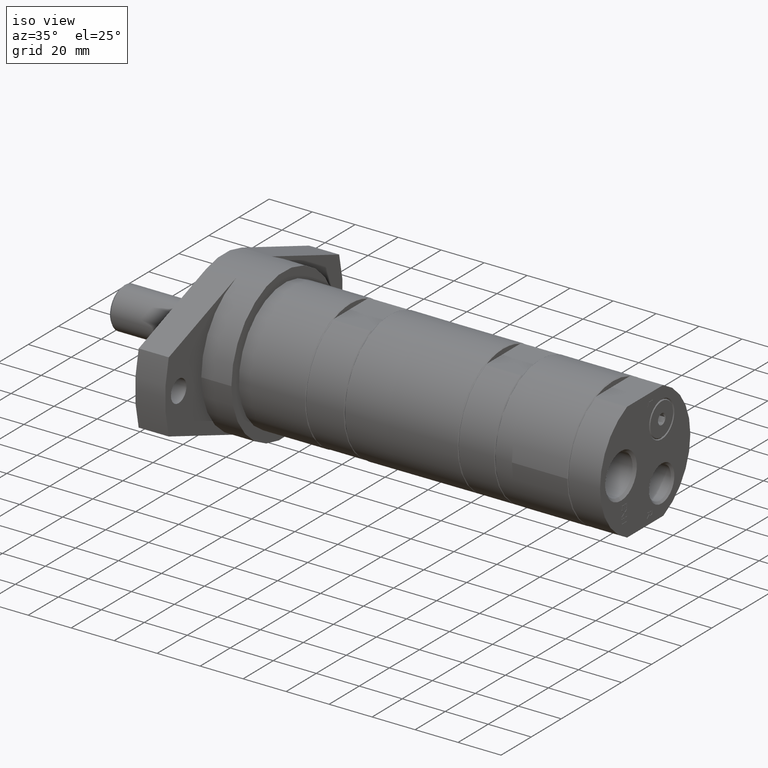
[diagram: clean part render]
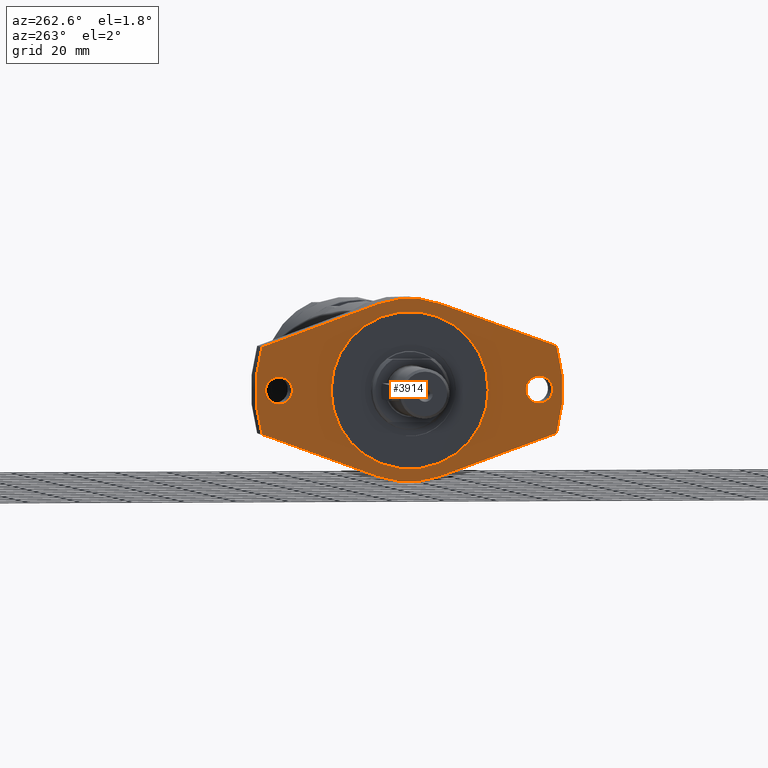
[diagram: tour spotlight — one face highlighted and labeled with its STEP entity id]
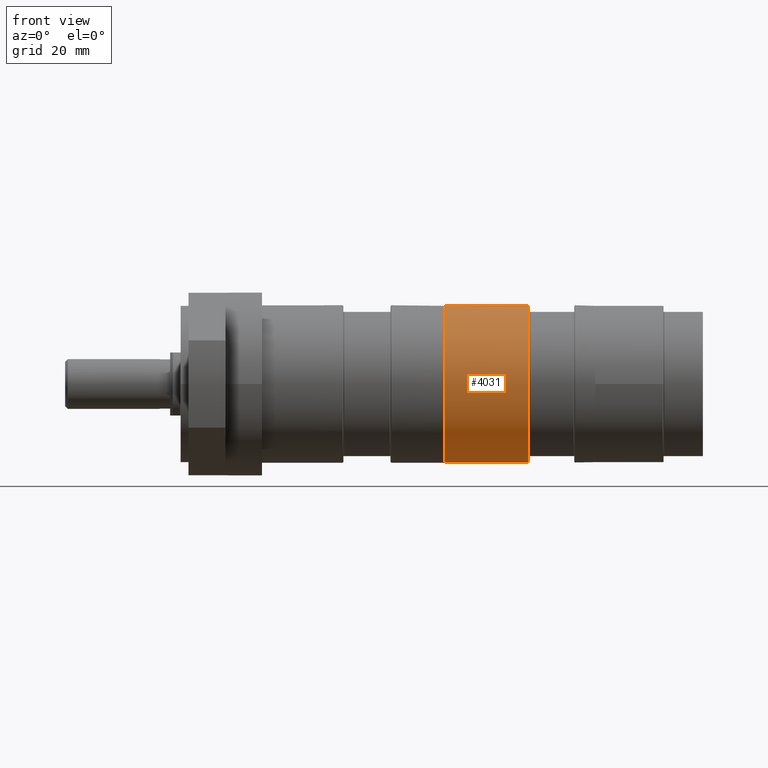
[diagram: tour spotlight — one face highlighted and labeled with its STEP entity id]
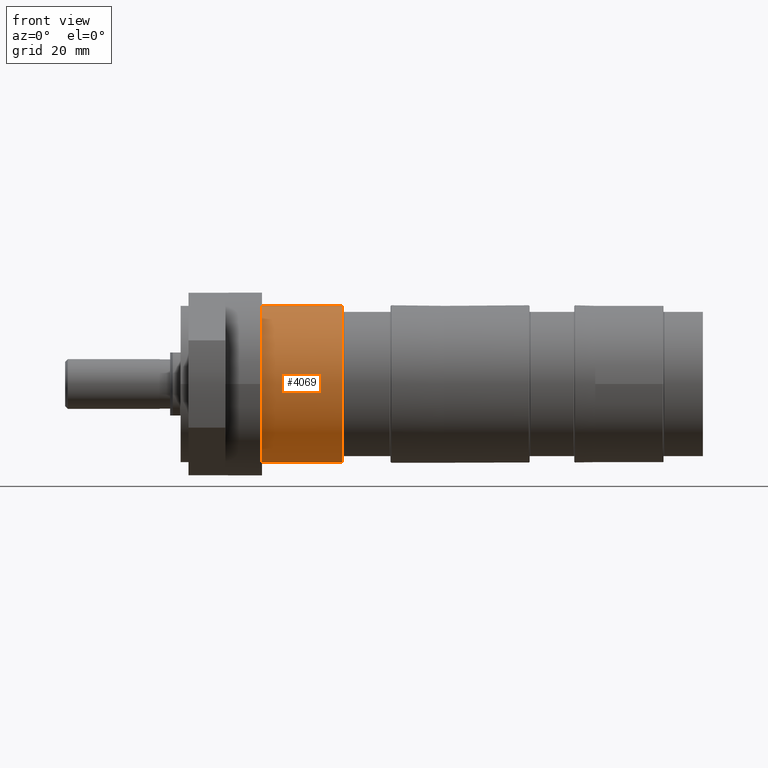
[diagram: tour spotlight — one face highlighted and labeled with its STEP entity id]
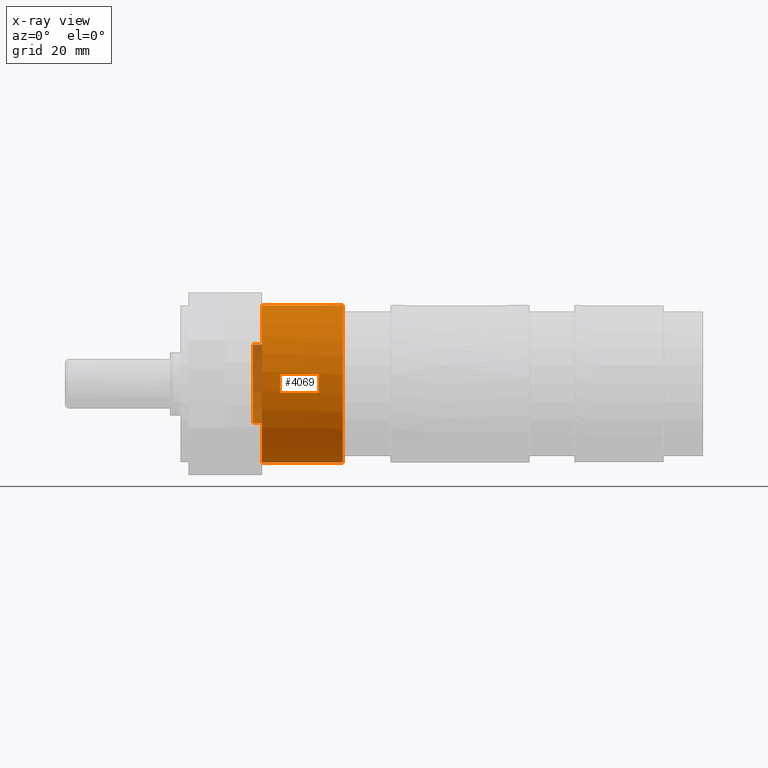
[diagram: x-ray of the same camera — body ghosted, this tour face saturated]
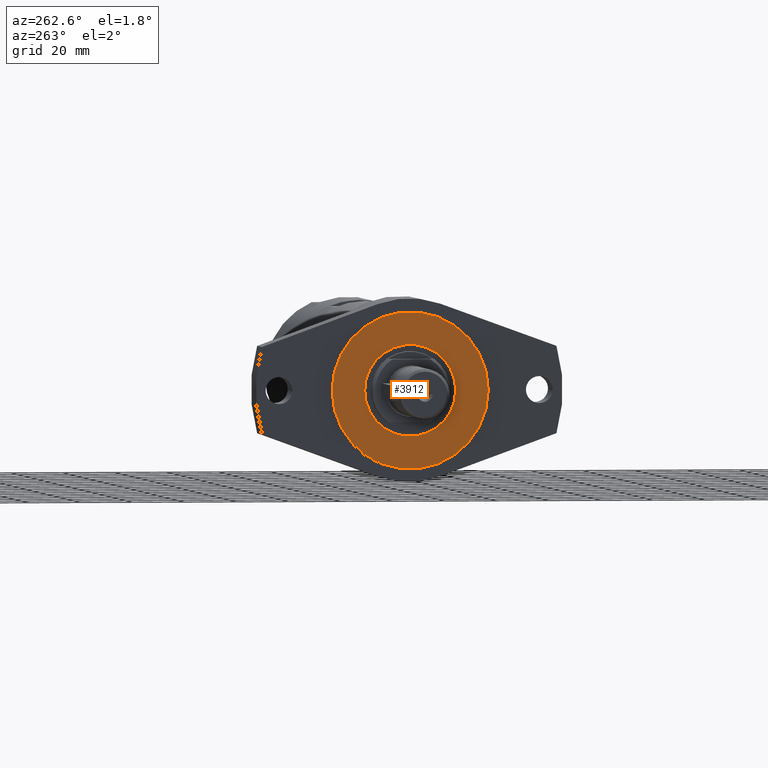
[diagram: tour spotlight — one face highlighted and labeled with its STEP entity id]
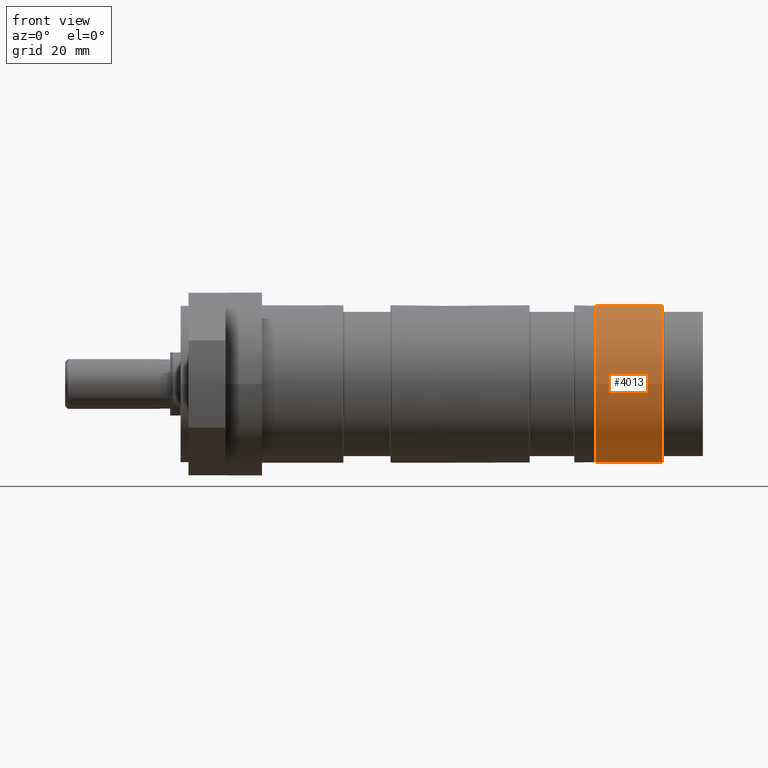
[diagram: tour spotlight — one face highlighted and labeled with its STEP entity id]
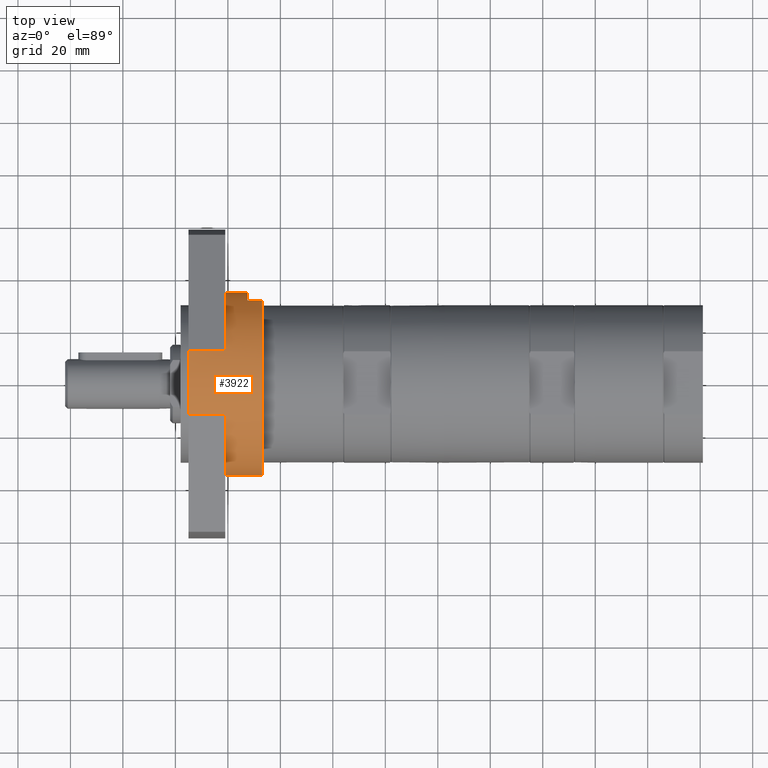
[diagram: tour spotlight — one face highlighted and labeled with its STEP entity id]
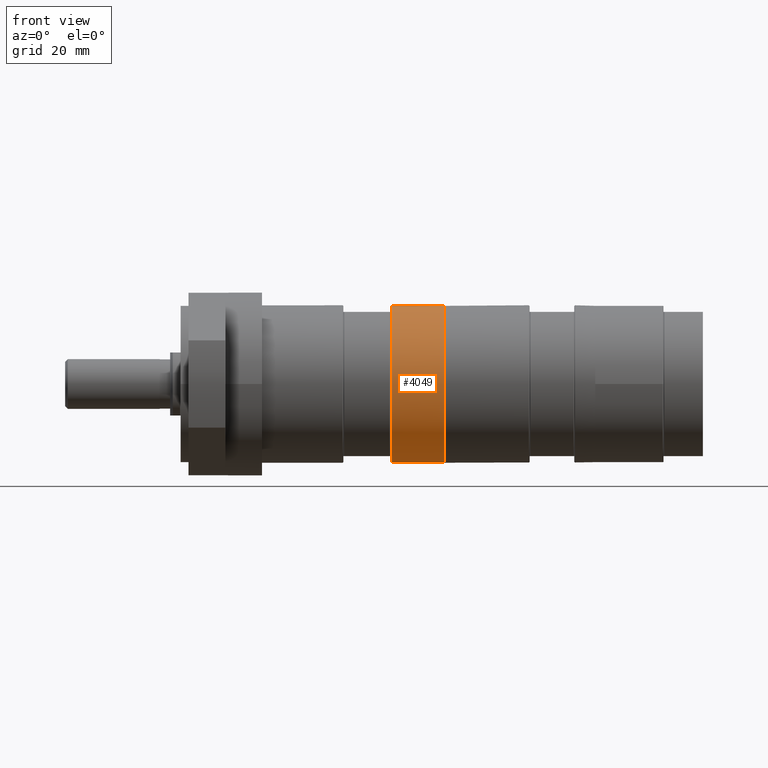
[diagram: tour spotlight — one face highlighted and labeled with its STEP entity id]
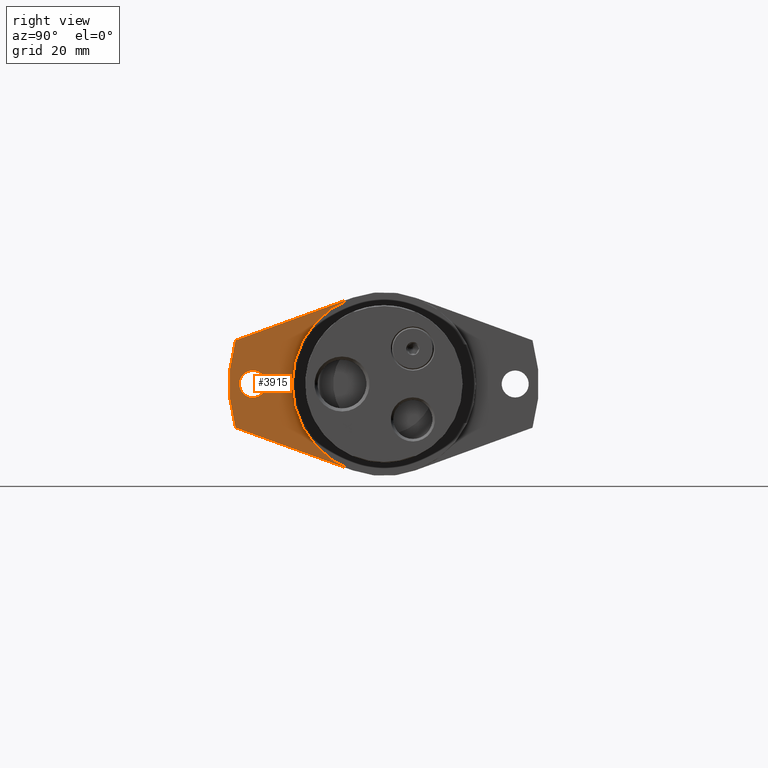
[diagram: tour spotlight — one face highlighted and labeled with its STEP entity id]
A machine part: a face-by-face anatomy tour. The part has 218 B-rep faces; the first image is the clean iso view, then the 8 largest visible faces are spotlighted one at a time (largest first), each with its STEP entity span.

Face 1 — auxiliary view, entity #3914. In plain terms, the highlighted planar face has unit normal (-1, -0, 0).
Definition (entity closure, byte-faithful):
#95=FACE_BOUND('',#1259,.T.);
#96=FACE_BOUND('',#1260,.T.);
#97=FACE_BOUND('',#1261,.T.);
#370=LINE('',#5796,#679);
#371=LINE('',#5799,#680);
#372=LINE('',#5801,#681);
#373=LINE('',#5804,#682);
#679=VECTOR('',#4639,10.);
#680=VECTOR('',#4642,10.);
#681=VECTOR('',#4643,10.);
#682=VECTOR('',#4646,10.);
#1038=FACE_OUTER_BOUND('',#1258,.T.);
#1258=EDGE_LOOP('',(#2691,#2692,#2693,#2694,#2695,#2696,#2697,#2698));
#1259=EDGE_LOOP('',(#2699));
#1260=EDGE_LOOP('',(#2700));
#1261=EDGE_LOOP('',(#2701,#2702));
#1503=CIRCLE('',#4168,59.);
#1504=CIRCLE('',#4170,30.);
#1505=CIRCLE('',#4171,30.);
#1509=CIRCLE('',#4177,59.);
#1510=CIRCLE('',#4179,35.);
#1511=CIRCLE('',#4180,35.);
#1512=CIRCLE('',#4181,5.15);
#1513=CIRCLE('',#4182,5.15);
#1705=VERTEX_POINT('',#5769);
#1706=VERTEX_POINT('',#5771);
#1707=VERTEX_POINT('',#5775);
#1708=VERTEX_POINT('',#5776);
#1711=VERTEX_POINT('',#5786);
#1714=VERTEX_POINT('',#5791);
#1715=VERTEX_POINT('',#5795);
#1716=VERTEX_POINT('',#5797);
#1717=VERTEX_POINT('',#5800);
#1718=VERTEX_POINT('',#5802);
#1719=VERTEX_POINT('',#5805);
#1720=VERTEX_POINT('',#5807);
#2090=EDGE_CURVE('',#1705,#1706,#1503,.T.);
#2092=EDGE_CURVE('',#1707,#1708,#1504,.T.);
#2093=EDGE_CURVE('',#1708,#1707,#1505,.T.);
#2100=EDGE_CURVE('',#1714,#1711,#1509,.T.);
#2101=EDGE_CURVE('',#1705,#1715,#370,.T.);
#2102=EDGE_CURVE('',#1715,#1716,#1510,.T.);
#2103=EDGE_CURVE('',#1716,#1711,#371,.T.);
#2104=EDGE_CURVE('',#1714,#1717,#372,.T.);
#2105=EDGE_CURVE('',#1717,#1718,#1511,.T.);
#2106=EDGE_CURVE('',#1718,#1706,#373,.T.);
#2107=EDGE_CURVE('',#1719,#1719,#1512,.T.);
#2108=EDGE_CURVE('',#1720,#1720,#1513,.T.);
#2691=ORIENTED_EDGE('',*,*,#2101,.T.);
#2692=ORIENTED_EDGE('',*,*,#2102,.T.);
#2693=ORIENTED_EDGE('',*,*,#2103,.T.);
#2694=ORIENTED_EDGE('',*,*,#2100,.F.);
#2695=ORIENTED_EDGE('',*,*,#2104,.T.);
#2696=ORIENTED_EDGE('',*,*,#2105,.T.);
#2697=ORIENTED_EDGE('',*,*,#2106,.T.);
#2698=ORIENTED_EDGE('',*,*,#2090,.F.);
#2699=ORIENTED_EDGE('',*,*,#2107,.T.);
#2700=ORIENTED_EDGE('',*,*,#2108,.T.);
#2701=ORIENTED_EDGE('',*,*,#2092,.T.);
#2702=ORIENTED_EDGE('',*,*,#2093,.T.);
#3777=PLANE('',#4178);
#3914=ADVANCED_FACE('',(#1038,#95,#96,#97),#3777,.T.);
#4168=AXIS2_PLACEMENT_3D('',#5772,#4613,#4614);
#4170=AXIS2_PLACEMENT_3D('',#5777,#4618,#4619);
#4171=AXIS2_PLACEMENT_3D('',#5778,#4620,#4621);
#4177=AXIS2_PLACEMENT_3D('',#5793,#4635,#4636);
#4178=AXIS2_PLACEMENT_3D('',#5794,#4637,#4638);
#4179=AXIS2_PLACEMENT_3D('',#5798,#4640,#4641);
#4180=AXIS2_PLACEMENT_3D('',#5803,#4644,#4645);
#4181=AXIS2_PLACEMENT_3D('',#5806,#4647,#4648);
#4182=AXIS2_PLACEMENT_3D('',#5808,#4649,#4650);
#4613=DIRECTION('center_axis',(1.,1.6466799969687E-15,-1.20178028529764E-30));
#4614=DIRECTION('ref_axis',(-1.6466799969687E-15,1.,3.94430452610507E-31));
#4618=DIRECTION('center_axis',(1.,1.6466799969687E-15,-1.20178028529764E-30));
#4619=DIRECTION('ref_axis',(-1.6466799969687E-15,1.,3.94430452610507E-31));
#4620=DIRECTION('center_axis',(1.,1.6466799969687E-15,-1.20178028529764E-30));
#4621=DIRECTION('ref_axis',(-1.6466799969687E-15,1.,3.94430452610507E-31));
#4635=DIRECTION('center_axis',(1.,1.6466799969687E-15,-1.20178028529764E-30));
#4636=DIRECTION('ref_axis',(-1.6466799969687E-15,1.,3.94430452610507E-31));
#4637=DIRECTION('center_axis',(-1.,-1.6466799969687E-15,1.20178028529764E-30));
#4638=DIRECTION('ref_axis',(1.20178028529764E-30,-3.94430452610505E-31,
1.));
#4639=DIRECTION('',(1.54737304194725E-15,-0.939692620785909,-0.342020143325668));
#4640=DIRECTION('center_axis',(-1.,-1.6466799969687E-15,1.20178028529764E-30));
#4641=DIRECTION('ref_axis',(5.63197728574748E-16,-0.342020143325668,0.939692620785909));
#4642=DIRECTION('',(1.54737304194725E-15,-0.939692620785908,0.342020143325669));
#4643=DIRECTION('',(-1.54737304194725E-15,0.939692620785908,0.342020143325669));
#4644=DIRECTION('center_axis',(-1.,-1.6466799969687E-15,1.20178028529764E-30));
#4645=DIRECTION('ref_axis',(-5.63197728574749E-16,0.342020143325669,-0.939692620785908));
#4646=DIRECTION('',(-1.54737304194725E-15,0.939692620785909,-0.342020143325669));
#4647=DIRECTION('center_axis',(1.,1.6466799969687E-15,-1.20178028529764E-30));
#4648=DIRECTION('ref_axis',(-1.03502222544593E-30,-1.01269257025463E-16,
-1.));
#4649=DIRECTION('center_axis',(1.,1.6466799969687E-15,-1.20178028529764E-30));
#4650=DIRECTION('ref_axis',(-1.03502222544593E-30,-1.01269257025463E-16,
-1.));
#5769=CARTESIAN_POINT('',(-155.,56.6036315599067,-16.6441849974799));
#5771=CARTESIAN_POINT('',(-155.,56.6036315599067,16.6441849974799));
#5772=CARTESIAN_POINT('Origin',(-155.,4.94003999090623E-15,-3.60534085589307E-30));
#5775=CARTESIAN_POINT('',(-155.,30.,8.22757272242215E-30));
#5776=CARTESIAN_POINT('',(-155.,-30.,-3.67394039744207E-15));
#5777=CARTESIAN_POINT('Origin',(-155.,4.94003999090623E-15,-3.60534085589307E-30));
#5778=CARTESIAN_POINT('Origin',(-155.,4.94003999090623E-15,-3.60534085589307E-30));
#5786=CARTESIAN_POINT('',(-154.999999999999,-56.6036315599067,-16.6441849974799));
#5791=CARTESIAN_POINT('',(-154.999999999999,-56.6036315599067,16.6441849974799));
#5793=CARTESIAN_POINT('Origin',(-155.,4.94003999090623E-15,-3.60534085589307E-30));
#5794=CARTESIAN_POINT('Origin',(-155.,44.5,1.39468142852745E-29));
#5795=CARTESIAN_POINT('',(-155.,11.9707050163984,-32.8892417275068));
#5796=CARTESIAN_POINT('',(-155.,76.7991739407519,-9.29360870599066));
#5797=CARTESIAN_POINT('',(-155.,-11.9707050163984,-32.8892417275068));
#5798=CARTESIAN_POINT('Origin',(-155.,4.94003999090623E-15,-3.60534085589307E-30));
#5799=CARTESIAN_POINT('',(-155.,7.67653941330023,-40.0402538852695));
#5800=CARTESIAN_POINT('',(-155.,-11.9707050163984,32.8892417275068));
#5801=CARTESIAN_POINT('',(-155.,-37.5046850813546,23.5956330215162));
#5802=CARTESIAN_POINT('',(-155.,11.9707050163984,32.8892417275068));
#5803=CARTESIAN_POINT('Origin',(-155.,4.94003999090623E-15,-3.60534085589307E-30));
#5804=CARTESIAN_POINT('',(-155.,31.617949446097,25.7382295697441));
#5805=CARTESIAN_POINT('',(-154.999999999999,-50.,5.15000000000001));
#5806=CARTESIAN_POINT('Origin',(-154.999999999999,-50.,5.06346285127313E-15));
#5807=CARTESIAN_POINT('',(-155.,50.,5.15));
#5808=CARTESIAN_POINT('Origin',(-155.,50.,-5.06346285127313E-15));

Face 2 — front view, entity #4031. In plain terms, the highlighted cylindrical surface (bore or boss wall) has radius 30 mm, axis along (1, 0, 0).
Definition (entity closure, byte-faithful):
#592=LINE('',#6582,#901);
#901=VECTOR('',#5227,30.);
#998=CYLINDRICAL_SURFACE('',#4361,30.);
#1155=FACE_OUTER_BOUND('',#1390,.T.);
#1390=EDGE_LOOP('',(#3318,#3319,#3320,#3321,#3322,#3323,#3324));
#1579=CIRCLE('',#4355,30.);
#1580=CIRCLE('',#4356,30.);
#1583=CIRCLE('',#4362,30.);
#1584=CIRCLE('',#4363,30.);
#1585=CIRCLE('',#4364,30.);
#1923=VERTEX_POINT('',#6567);
#1924=VERTEX_POINT('',#6568);
#1927=VERTEX_POINT('',#6581);
#1928=VERTEX_POINT('',#6583);
#1929=VERTEX_POINT('',#6585);
#2415=EDGE_CURVE('',#1923,#1924,#1579,.T.);
#2416=EDGE_CURVE('',#1924,#1923,#1580,.T.);
#2422=EDGE_CURVE('',#1923,#1927,#592,.T.);
#2423=EDGE_CURVE('',#1927,#1928,#1583,.T.);
#2424=EDGE_CURVE('',#1928,#1929,#1584,.T.);
#2425=EDGE_CURVE('',#1929,#1927,#1585,.T.);
#3318=ORIENTED_EDGE('',*,*,#2415,.T.);
#3319=ORIENTED_EDGE('',*,*,#2416,.T.);
#3320=ORIENTED_EDGE('',*,*,#2422,.T.);
#3321=ORIENTED_EDGE('',*,*,#2423,.T.);
#3322=ORIENTED_EDGE('',*,*,#2424,.T.);
#3323=ORIENTED_EDGE('',*,*,#2425,.T.);
#3324=ORIENTED_EDGE('',*,*,#2422,.F.);
#4031=ADVANCED_FACE('',(#1155),#998,.T.);
#4355=AXIS2_PLACEMENT_3D('',#6569,#5210,#5211);
#4356=AXIS2_PLACEMENT_3D('',#6570,#5212,#5213);
#4361=AXIS2_PLACEMENT_3D('',#6580,#5225,#5226);
#4362=AXIS2_PLACEMENT_3D('',#6584,#5228,#5229);
#4363=AXIS2_PLACEMENT_3D('',#6586,#5230,#5231);
#4364=AXIS2_PLACEMENT_3D('',#6587,#5232,#5233);
#5210=DIRECTION('center_axis',(-1.,-6.15522897323642E-16,-6.77724834287753E-32));
#5211=DIRECTION('ref_axis',(5.04500594861127E-16,-1.,3.41912582050329E-47));
#5212=DIRECTION('center_axis',(-1.,-6.15522897323642E-16,-6.77724834287753E-32));
#5213=DIRECTION('ref_axis',(5.04500594861127E-16,-1.,3.41912582050329E-47));
#5225=DIRECTION('center_axis',(1.,6.15522897323642E-16,6.77724834287753E-32));
#5226=DIRECTION('ref_axis',(5.04500594861127E-16,-1.,3.41912582050329E-47));
#5227=DIRECTION('',(-1.,-6.15522897323642E-16,-6.77724834287753E-32));
#5228=DIRECTION('center_axis',(1.,6.15522897323642E-16,6.77724834287753E-32));
#5229=DIRECTION('ref_axis',(5.04500594861127E-16,-1.,3.41912582050329E-47));
#5230=DIRECTION('center_axis',(1.,6.15522897323642E-16,6.77724834287753E-32));
#5231=DIRECTION('ref_axis',(5.04500594861127E-16,-1.,3.41912582050329E-47));
#5232=DIRECTION('center_axis',(1.,6.15522897323642E-16,6.77724834287753E-32));
#5233=DIRECTION('ref_axis',(5.04500594861127E-16,-1.,3.41912582050329E-47));
#6567=CARTESIAN_POINT('',(-25.3,30.,-3.67394039744206E-15));
#6568=CARTESIAN_POINT('',(-25.3,2.5070978907572E-14,30.));
#6569=CARTESIAN_POINT('Origin',(-25.3,2.87449193050141E-14,3.1649749761238E-30));
#6570=CARTESIAN_POINT('Origin',(-25.3,2.87449193050141E-14,3.1649749761238E-30));
#6580=CARTESIAN_POINT('Origin',(-28.75,2.66213653092475E-14,2.93115990829453E-30));
#6581=CARTESIAN_POINT('',(-57.5,30.,3.67394039744206E-15));
#6582=CARTESIAN_POINT('',(-28.75,30.,3.67394039744206E-15));
#6583=CARTESIAN_POINT('',(-57.5,-30.,9.82701009717243E-31));
#6584=CARTESIAN_POINT('Origin',(-57.5,8.92508201119281E-15,9.82701009717241E-31));
#6585=CARTESIAN_POINT('',(-57.5,1.04007659795775E-13,-30.));
#6586=CARTESIAN_POINT('Origin',(-57.5,8.92508201119281E-15,9.82701009717241E-31));
#6587=CARTESIAN_POINT('Origin',(-57.5,8.92508201119281E-15,9.82701009717241E-31));

Face 3 — front view, entity #4069. An x-ray twin of the same camera follows (body ghosted, this face saturated) — the face is partly hidden behind the body. In plain terms, the highlighted cylindrical surface (bore or boss wall) has radius 30 mm, axis along (1, 0, -0).
Definition (entity closure, byte-faithful):
#389=LINE('',#5863,#698);
#392=LINE('',#5868,#701);
#628=LINE('',#6857,#937);
#698=VECTOR('',#4710,10.);
#701=VECTOR('',#4715,10.);
#937=VECTOR('',#5421,30.);
#1005=CYLINDRICAL_SURFACE('',#4440,30.);
#1193=FACE_OUTER_BOUND('',#1433,.T.);
#1433=EDGE_LOOP('',(#3518,#3519,#3520,#3521,#3522,#3523,#3524,#3525,#3526));
#1521=CIRCLE('',#4199,30.);
#1522=CIRCLE('',#4200,30.);
#1603=CIRCLE('',#4402,30.);
#1614=CIRCLE('',#4417,30.);
#1615=CIRCLE('',#4418,30.);
#1731=VERTEX_POINT('',#5846);
#1732=VERTEX_POINT('',#5848);
#1733=VERTEX_POINT('',#5850);
#1737=VERTEX_POINT('',#5862);
#1738=VERTEX_POINT('',#5866);
#1981=VERTEX_POINT('',#6796);
#1982=VERTEX_POINT('',#6798);
#2129=EDGE_CURVE('',#1733,#1732,#1521,.T.);
#2130=EDGE_CURVE('',#1731,#1733,#1522,.T.);
#2135=EDGE_CURVE('',#1732,#1737,#389,.T.);
#2138=EDGE_CURVE('',#1738,#1731,#392,.T.);
#2479=EDGE_CURVE('',#1737,#1738,#1603,.T.);
#2498=EDGE_CURVE('',#1982,#1981,#1614,.T.);
#2499=EDGE_CURVE('',#1981,#1982,#1615,.T.);
#2521=EDGE_CURVE('',#1982,#1733,#628,.T.);
#3518=ORIENTED_EDGE('',*,*,#2498,.T.);
#3519=ORIENTED_EDGE('',*,*,#2499,.T.);
#3520=ORIENTED_EDGE('',*,*,#2521,.T.);
#3521=ORIENTED_EDGE('',*,*,#2129,.T.);
#3522=ORIENTED_EDGE('',*,*,#2135,.T.);
#3523=ORIENTED_EDGE('',*,*,#2479,.T.);
#3524=ORIENTED_EDGE('',*,*,#2138,.T.);
#3525=ORIENTED_EDGE('',*,*,#2130,.T.);
#3526=ORIENTED_EDGE('',*,*,#2521,.F.);
#4069=ADVANCED_FACE('',(#1193),#1005,.T.);
#4199=AXIS2_PLACEMENT_3D('',#5851,#4696,#4697);
#4200=AXIS2_PLACEMENT_3D('',#5852,#4698,#4699);
#4402=AXIS2_PLACEMENT_3D('',#6721,#5332,#5333);
#4417=AXIS2_PLACEMENT_3D('',#6799,#5366,#5367);
#4418=AXIS2_PLACEMENT_3D('',#6800,#5368,#5369);
#4440=AXIS2_PLACEMENT_3D('',#6856,#5419,#5420);
#4696=DIRECTION('center_axis',(1.,1.6466799969687E-15,-1.20178028529764E-30));
#4697=DIRECTION('ref_axis',(-1.6466799969687E-15,1.,3.94430452610507E-31));
#4698=DIRECTION('center_axis',(1.,1.6466799969687E-15,-1.20178028529764E-30));
#4699=DIRECTION('ref_axis',(-1.6466799969687E-15,1.,3.94430452610507E-31));
#4710=DIRECTION('',(-1.,-1.6466799969687E-15,1.20178028529764E-30));
#4715=DIRECTION('',(1.,1.6466799969687E-15,-1.20178028529764E-30));
#5332=DIRECTION('center_axis',(1.,6.15522897323642E-16,-9.73181215116916E-17));
#5333=DIRECTION('ref_axis',(9.73181215116927E-17,-1.74409778023631E-15,
1.));
#5366=DIRECTION('center_axis',(-1.,-6.15522897323642E-16,9.73181215116916E-17));
#5367=DIRECTION('ref_axis',(9.73181215116927E-17,-1.74409778023631E-15,
1.));
#5368=DIRECTION('center_axis',(-1.,-6.15522897323642E-16,9.73181215116916E-17));
#5369=DIRECTION('ref_axis',(9.73181215116927E-17,-1.74409778023631E-15,
1.));
#5419=DIRECTION('center_axis',(1.,6.15522897323642E-16,-9.73181215116916E-17));
#5420=DIRECTION('ref_axis',(9.73181215116927E-17,-1.74409778023631E-15,
1.));
#5421=DIRECTION('',(-1.,-6.15522897323642E-16,9.73181215116916E-17));
#5846=CARTESIAN_POINT('',(-127.,25.9807621135332,15.));
#5848=CARTESIAN_POINT('',(-127.,25.9807621135332,-15.));
#5850=CARTESIAN_POINT('',(-127.,6.12288184317824E-14,-30.));
#5851=CARTESIAN_POINT('Origin',(-127.,5.10470799060299E-14,-3.72551888442271E-29));
#5852=CARTESIAN_POINT('Origin',(-127.,5.10470799060299E-14,-3.72551888442271E-29));
#5862=CARTESIAN_POINT('',(-130.5,25.9807621135332,-15.));
#5863=CARTESIAN_POINT('',(-129.75,25.9807621135332,-15.));
#5866=CARTESIAN_POINT('',(-130.5,25.9807621135332,15.));
#5868=CARTESIAN_POINT('',(-129.75,25.9807621135332,15.));
#6721=CARTESIAN_POINT('Origin',(-130.5,3.07761448661821E-15,-4.86590607558458E-16));
#6796=CARTESIAN_POINT('',(-96.2999999999997,-2.45204954345605E-14,30.));
#6798=CARTESIAN_POINT('',(-96.2999999999997,7.2777490584734E-14,-30.));
#6799=CARTESIAN_POINT('Origin',(-96.2999999999997,2.41284975750868E-14,
-3.81487036325831E-15));
#6800=CARTESIAN_POINT('Origin',(-96.2999999999997,2.41284975750868E-14,
-3.81487036325831E-15));
#6856=CARTESIAN_POINT('Origin',(-135.5,1.12103877145985E-43,1.38178696881511E-75));
#6857=CARTESIAN_POINT('',(-135.5,5.59968738045314E-14,-30.));

Face 4 — auxiliary view, entity #3912. In plain terms, the highlighted planar face has unit normal (-1, -0, 0).
Definition (entity closure, byte-faithful):
#94=FACE_BOUND('',#1256,.T.);
#1036=FACE_OUTER_BOUND('',#1255,.T.);
#1255=EDGE_LOOP('',(#2683,#2684));
#1256=EDGE_LOOP('',(#2685,#2686));
#1497=CIRCLE('',#4160,17.5);
#1498=CIRCLE('',#4161,17.5);
#1506=CIRCLE('',#4172,30.);
#1507=CIRCLE('',#4173,30.);
#1697=VERTEX_POINT('',#5750);
#1698=VERTEX_POINT('',#5752);
#1709=VERTEX_POINT('',#5779);
#1710=VERTEX_POINT('',#5781);
#2081=EDGE_CURVE('',#1698,#1697,#1497,.T.);
#2082=EDGE_CURVE('',#1697,#1698,#1498,.T.);
#2095=EDGE_CURVE('',#1709,#1710,#1506,.T.);
#2096=EDGE_CURVE('',#1710,#1709,#1507,.T.);
#2683=ORIENTED_EDGE('',*,*,#2096,.F.);
#2684=ORIENTED_EDGE('',*,*,#2095,.F.);
#2685=ORIENTED_EDGE('',*,*,#2081,.T.);
#2686=ORIENTED_EDGE('',*,*,#2082,.T.);
#3776=PLANE('',#4174);
#3912=ADVANCED_FACE('',(#1036,#94),#3776,.T.);
#4160=AXIS2_PLACEMENT_3D('',#5753,#4594,#4595);
#4161=AXIS2_PLACEMENT_3D('',#5754,#4596,#4597);
#4172=AXIS2_PLACEMENT_3D('',#5782,#4623,#4624);
#4173=AXIS2_PLACEMENT_3D('',#5783,#4625,#4626);
#4174=AXIS2_PLACEMENT_3D('',#5784,#4627,#4628);
#4594=DIRECTION('center_axis',(1.,1.6466799969687E-15,-1.20178028529764E-30));
#4595=DIRECTION('ref_axis',(-1.6466799969687E-15,1.,3.94430452610507E-31));
#4596=DIRECTION('center_axis',(1.,1.6466799969687E-15,-1.20178028529764E-30));
#4597=DIRECTION('ref_axis',(-1.6466799969687E-15,1.,3.94430452610507E-31));
#4623=DIRECTION('center_axis',(1.,1.6466799969687E-15,-1.20178028529764E-30));
#4624=DIRECTION('ref_axis',(-1.6466799969687E-15,1.,3.94430452610507E-31));
#4625=DIRECTION('center_axis',(1.,1.6466799969687E-15,-1.20178028529764E-30));
#4626=DIRECTION('ref_axis',(-1.6466799969687E-15,1.,3.94430452610507E-31));
#4627=DIRECTION('center_axis',(-1.,-1.6466799969687E-15,1.20178028529764E-30));
#4628=DIRECTION('ref_axis',(1.20178028529764E-30,-3.94430452610505E-31,
1.));
#5750=CARTESIAN_POINT('',(-158.,-17.5,-2.14313189850787E-15));
#5752=CARTESIAN_POINT('',(-158.,17.5,6.90253292068374E-30));
#5753=CARTESIAN_POINT('Origin',(-158.,1.18329135783152E-28,-1.41443563742786E-43));
#5754=CARTESIAN_POINT('Origin',(-158.,1.18329135783152E-28,-1.41443563742786E-43));
#5779=CARTESIAN_POINT('',(-158.,-30.,-3.67394039744207E-15));
#5781=CARTESIAN_POINT('',(-158.,30.,1.18329135783151E-29));
#5782=CARTESIAN_POINT('Origin',(-158.,1.18329135783152E-28,-1.41443563742786E-43));
#5783=CARTESIAN_POINT('Origin',(-158.,1.18329135783152E-28,-1.41443563742786E-43));
#5784=CARTESIAN_POINT('Origin',(-158.,23.75,9.36772324949941E-30));

Face 5 — front view, entity #4013. In plain terms, the highlighted cylindrical surface (bore or boss wall) has radius 30 mm, axis along (1, 0, 0).
Definition (entity closure, byte-faithful):
#580=LINE('',#6480,#889);
#889=VECTOR('',#5135,30.);
#994=CYLINDRICAL_SURFACE('',#4321,30.);
#1137=FACE_OUTER_BOUND('',#1372,.T.);
#1372=EDGE_LOOP('',(#3230,#3231,#3232,#3233,#3234));
#1560=CIRCLE('',#4320,30.);
#1561=CIRCLE('',#4322,30.);
#1562=CIRCLE('',#4323,30.);
#1900=VERTEX_POINT('',#6475);
#1901=VERTEX_POINT('',#6479);
#1902=VERTEX_POINT('',#6481);
#2379=EDGE_CURVE('',#1900,#1900,#1560,.T.);
#2380=EDGE_CURVE('',#1900,#1901,#580,.T.);
#2381=EDGE_CURVE('',#1901,#1902,#1561,.T.);
#2382=EDGE_CURVE('',#1902,#1901,#1562,.T.);
#3230=ORIENTED_EDGE('',*,*,#2379,.T.);
#3231=ORIENTED_EDGE('',*,*,#2380,.T.);
#3232=ORIENTED_EDGE('',*,*,#2381,.T.);
#3233=ORIENTED_EDGE('',*,*,#2382,.T.);
#3234=ORIENTED_EDGE('',*,*,#2380,.F.);
#4013=ADVANCED_FACE('',(#1137),#994,.T.);
#4320=AXIS2_PLACEMENT_3D('',#6477,#5131,#5132);
#4321=AXIS2_PLACEMENT_3D('',#6478,#5133,#5134);
#4322=AXIS2_PLACEMENT_3D('',#6482,#5136,#5137);
#4323=AXIS2_PLACEMENT_3D('',#6483,#5138,#5139);
#5131=DIRECTION('center_axis',(-1.,0.,0.));
#5132=DIRECTION('ref_axis',(0.,1.,0.));
#5133=DIRECTION('center_axis',(1.,0.,0.));
#5134=DIRECTION('ref_axis',(0.,1.,0.));
#5135=DIRECTION('',(-1.,0.,0.));
#5136=DIRECTION('center_axis',(1.,6.15522897323642E-16,6.77724834287753E-32));
#5137=DIRECTION('ref_axis',(5.04500594861127E-16,-1.,3.41912582050329E-47));
#5138=DIRECTION('center_axis',(1.,6.15522897323642E-16,6.77724834287753E-32));
#5139=DIRECTION('ref_axis',(5.04500594861127E-16,-1.,3.41912582050329E-47));
#6475=CARTESIAN_POINT('',(25.7,-30.,3.67394039744206E-15));
#6477=CARTESIAN_POINT('Origin',(25.7,0.,0.));
#6478=CARTESIAN_POINT('Origin',(20.5,0.,0.));
#6479=CARTESIAN_POINT('',(1.77635683940025E-14,-30.,4.87961880687182E-30));
#6480=CARTESIAN_POINT('',(20.5,-30.,-3.67394039744206E-15));
#6481=CARTESIAN_POINT('',(-3.33066907387547E-15,30.,0.));
#6482=CARTESIAN_POINT('Origin',(0.,4.43176486073022E-14,4.87961880687182E-30));
#6483=CARTESIAN_POINT('Origin',(0.,4.43176486073022E-14,4.87961880687182E-30));

Face 6 — top view, entity #3922. In plain terms, the highlighted cylindrical surface (bore or boss wall) has radius 35 mm, axis along (1, 0, -0).
Definition (entity closure, byte-faithful):
#376=LINE('',#5822,#685);
#377=LINE('',#5824,#686);
#378=LINE('',#5826,#687);
#379=LINE('',#5828,#688);
#382=LINE('',#5836,#691);
#383=LINE('',#5840,#692);
#384=LINE('',#5843,#693);
#685=VECTOR('',#4665,10.);
#686=VECTOR('',#4668,10.);
#687=VECTOR('',#4671,10.);
#688=VECTOR('',#4674,10.);
#691=VECTOR('',#4683,10.);
#692=VECTOR('',#4686,10.);
#693=VECTOR('',#4689,35.);
#986=CYLINDRICAL_SURFACE('',#4194,35.);
#1046=FACE_OUTER_BOUND('',#1270,.T.);
#1270=EDGE_LOOP('',(#2736,#2737,#2738,#2739,#2740,#2741,#2742,#2743,#2744,
#2745,#2746,#2747,#2748,#2749,#2750,#2751));
#1500=CIRCLE('',#4164,35.);
#1510=CIRCLE('',#4179,35.);
#1511=CIRCLE('',#4180,35.);
#1514=CIRCLE('',#4184,35.);
#1515=CIRCLE('',#4185,35.);
#1518=CIRCLE('',#4195,35.);
#1519=CIRCLE('',#4196,35.);
#1520=CIRCLE('',#4197,35.);
#1699=VERTEX_POINT('',#5756);
#1702=VERTEX_POINT('',#5761);
#1715=VERTEX_POINT('',#5795);
#1716=VERTEX_POINT('',#5797);
#1717=VERTEX_POINT('',#5800);
#1718=VERTEX_POINT('',#5802);
#1721=VERTEX_POINT('',#5810);
#1722=VERTEX_POINT('',#5812);
#1723=VERTEX_POINT('',#5814);
#1726=VERTEX_POINT('',#5834);
#1727=VERTEX_POINT('',#5835);
#1728=VERTEX_POINT('',#5837);
#1729=VERTEX_POINT('',#5839);
#1730=VERTEX_POINT('',#5841);
#2086=EDGE_CURVE('',#1699,#1702,#1500,.T.);
#2102=EDGE_CURVE('',#1715,#1716,#1510,.T.);
#2105=EDGE_CURVE('',#1717,#1718,#1511,.T.);
#2110=EDGE_CURVE('',#1722,#1721,#1514,.T.);
#2111=EDGE_CURVE('',#1723,#1722,#1515,.T.);
#2115=EDGE_CURVE('',#1715,#1699,#376,.T.);
#2116=EDGE_CURVE('',#1718,#1702,#377,.T.);
#2117=EDGE_CURVE('',#1717,#1723,#378,.T.);
#2118=EDGE_CURVE('',#1716,#1721,#379,.T.);
#2121=EDGE_CURVE('',#1726,#1727,#382,.T.);
#2122=EDGE_CURVE('',#1727,#1728,#1518,.T.);
#2123=EDGE_CURVE('',#1728,#1729,#383,.T.);
#2124=EDGE_CURVE('',#1730,#1729,#1519,.T.);
#2125=EDGE_CURVE('',#1730,#1722,#384,.T.);
#2126=EDGE_CURVE('',#1726,#1730,#1520,.T.);
#2736=ORIENTED_EDGE('',*,*,#2121,.T.);
#2737=ORIENTED_EDGE('',*,*,#2122,.T.);
#2738=ORIENTED_EDGE('',*,*,#2123,.T.);
#2739=ORIENTED_EDGE('',*,*,#2124,.F.);
#2740=ORIENTED_EDGE('',*,*,#2125,.T.);
#2741=ORIENTED_EDGE('',*,*,#2110,.T.);
#2742=ORIENTED_EDGE('',*,*,#2118,.F.);
#2743=ORIENTED_EDGE('',*,*,#2102,.F.);
#2744=ORIENTED_EDGE('',*,*,#2115,.T.);
#2745=ORIENTED_EDGE('',*,*,#2086,.T.);
#2746=ORIENTED_EDGE('',*,*,#2116,.F.);
#2747=ORIENTED_EDGE('',*,*,#2105,.F.);
#2748=ORIENTED_EDGE('',*,*,#2117,.T.);
#2749=ORIENTED_EDGE('',*,*,#2111,.T.);
#2750=ORIENTED_EDGE('',*,*,#2125,.F.);
#2751=ORIENTED_EDGE('',*,*,#2126,.F.);
#3922=ADVANCED_FACE('',(#1046),#986,.T.);
#4164=AXIS2_PLACEMENT_3D('',#5763,#4604,#4605);
#4179=AXIS2_PLACEMENT_3D('',#5798,#4640,#4641);
#4180=AXIS2_PLACEMENT_3D('',#5803,#4644,#4645);
#4184=AXIS2_PLACEMENT_3D('',#5813,#4654,#4655);
#4185=AXIS2_PLACEMENT_3D('',#5815,#4656,#4657);
#4194=AXIS2_PLACEMENT_3D('',#5833,#4681,#4682);
#4195=AXIS2_PLACEMENT_3D('',#5838,#4684,#4685);
#4196=AXIS2_PLACEMENT_3D('',#5842,#4687,#4688);
#4197=AXIS2_PLACEMENT_3D('',#5844,#4690,#4691);
#4604=DIRECTION('center_axis',(1.,1.6466799969687E-15,-1.20178028529764E-30));
#4605=DIRECTION('ref_axis',(-1.6466799969687E-15,1.,3.94430452610507E-31));
#4640=DIRECTION('center_axis',(-1.,-1.6466799969687E-15,1.20178028529764E-30));
#4641=DIRECTION('ref_axis',(5.63197728574748E-16,-0.342020143325668,0.939692620785909));
#4644=DIRECTION('center_axis',(-1.,-1.6466799969687E-15,1.20178028529764E-30));
#4645=DIRECTION('ref_axis',(-5.63197728574749E-16,0.342020143325669,-0.939692620785908));
#4654=DIRECTION('center_axis',(1.,1.6466799969687E-15,-1.20178028529764E-30));
#4655=DIRECTION('ref_axis',(-1.6466799969687E-15,1.,3.94430452610507E-31));
#4656=DIRECTION('center_axis',(1.,1.6466799969687E-15,-1.20178028529764E-30));
#4657=DIRECTION('ref_axis',(-1.6466799969687E-15,1.,3.94430452610507E-31));
#4665=DIRECTION('',(1.,1.6466799969687E-15,-1.20178028529764E-30));
#4668=DIRECTION('',(1.,1.6466799969687E-15,-1.20178028529764E-30));
#4671=DIRECTION('',(1.,1.6466799969687E-15,-1.20178028529764E-30));
#4674=DIRECTION('',(1.,1.6466799969687E-15,-1.20178028529764E-30));
#4681=DIRECTION('center_axis',(1.,1.6466799969687E-15,-1.20178028529764E-30));
#4682=DIRECTION('ref_axis',(-1.6466799969687E-15,1.,3.94430452610507E-31));
#4683=DIRECTION('',(-1.,-1.6466799969687E-15,1.20178028529764E-30));
#4684=DIRECTION('center_axis',(-1.,-1.6466799969687E-15,1.43072001732696E-30));
#4685=DIRECTION('ref_axis',(-1.6466799969687E-15,1.,3.94430452610507E-31));
#4686=DIRECTION('',(1.,1.6466799969687E-15,-1.20178028529764E-30));
#4687=DIRECTION('center_axis',(1.,1.6466799969687E-15,-1.20178028529764E-30));
#4688=DIRECTION('ref_axis',(-1.6466799969687E-15,1.,3.94430452610507E-31));
#4689=DIRECTION('',(-1.,-1.6466799969687E-15,1.20178028529764E-30));
#4690=DIRECTION('center_axis',(1.,1.6466799969687E-15,-1.20178028529764E-30));
#4691=DIRECTION('ref_axis',(-1.6466799969687E-15,1.,3.94430452610507E-31));
#5756=CARTESIAN_POINT('',(-141.,11.9707050163984,-32.8892417275068));
#5761=CARTESIAN_POINT('',(-141.,11.9707050163984,32.8892417275068));
#5763=CARTESIAN_POINT('Origin',(-141.,2.79935599484681E-14,-2.04302648500601E-29));
#5795=CARTESIAN_POINT('',(-155.,11.9707050163984,-32.8892417275068));
#5797=CARTESIAN_POINT('',(-155.,-11.9707050163984,-32.8892417275068));
#5798=CARTESIAN_POINT('Origin',(-155.,4.94003999090623E-15,-3.60534085589307E-30));
#5800=CARTESIAN_POINT('',(-155.,-11.9707050163984,32.8892417275068));
#5802=CARTESIAN_POINT('',(-155.,11.9707050163984,32.8892417275068));
#5803=CARTESIAN_POINT('Origin',(-155.,4.94003999090623E-15,-3.60534085589307E-30));
#5810=CARTESIAN_POINT('',(-141.,-11.9707050163984,-32.8892417275068));
#5812=CARTESIAN_POINT('',(-141.,-35.,-4.28626379701577E-15));
#5813=CARTESIAN_POINT('Origin',(-141.,2.79935599484681E-14,-2.04302648500601E-29));
#5814=CARTESIAN_POINT('',(-141.,-11.9707050163984,32.8892417275068));
#5815=CARTESIAN_POINT('Origin',(-141.,2.79935599484681E-14,-2.04302648500601E-29));
#5822=CARTESIAN_POINT('',(-155.,11.9707050163984,-32.8892417275068));
#5824=CARTESIAN_POINT('',(-155.,11.9707050163984,32.8892417275068));
#5826=CARTESIAN_POINT('',(-155.,-11.9707050163984,32.8892417275068));
#5828=CARTESIAN_POINT('',(-155.,-11.9707050163984,-32.8892417275068));
#5833=CARTESIAN_POINT('Origin',(-134.,3.9520319927249E-14,-2.88427268471436E-29));
#5834=CARTESIAN_POINT('',(-127.,31.6227766016838,15.));
#5835=CARTESIAN_POINT('',(-132.5,31.6227766016838,15.));
#5836=CARTESIAN_POINT('',(-134.,31.6227766016838,15.));
#5837=CARTESIAN_POINT('',(-132.5,31.6227766016838,-15.));
#5838=CARTESIAN_POINT('Origin',(-132.5,4.19903399227021E-14,-3.06453972750901E-29));
#5839=CARTESIAN_POINT('',(-127.,31.6227766016838,-15.));
#5840=CARTESIAN_POINT('',(-134.,31.6227766016838,-15.));
#5841=CARTESIAN_POINT('',(-127.,-34.9999999999999,-4.28626379701579E-15));
#5842=CARTESIAN_POINT('Origin',(-127.,5.10470799060299E-14,-3.72551888442271E-29));
#5843=CARTESIAN_POINT('',(-134.,-35.,-4.28626379701578E-15));
#5844=CARTESIAN_POINT('Origin',(-127.,5.10470799060299E-14,-3.72551888442271E-29));

Face 7 — front view, entity #4049. In plain terms, the highlighted cylindrical surface (bore or boss wall) has radius 30 mm, axis along (1, 0, -0).
Definition (entity closure, byte-faithful):
#615=LINE('',#6706,#924);
#924=VECTOR('',#5314,30.);
#1000=CYLINDRICAL_SURFACE('',#4393,30.);
#1173=FACE_OUTER_BOUND('',#1409,.T.);
#1409=EDGE_LOOP('',(#3417,#3418,#3419,#3420,#3421,#3422,#3423));
#1583=CIRCLE('',#4362,30.);
#1584=CIRCLE('',#4363,30.);
#1585=CIRCLE('',#4364,30.);
#1597=CIRCLE('',#4394,30.);
#1598=CIRCLE('',#4395,30.);
#1927=VERTEX_POINT('',#6581);
#1928=VERTEX_POINT('',#6583);
#1929=VERTEX_POINT('',#6585);
#1960=VERTEX_POINT('',#6705);
#1961=VERTEX_POINT('',#6707);
#2423=EDGE_CURVE('',#1927,#1928,#1583,.T.);
#2424=EDGE_CURVE('',#1928,#1929,#1584,.T.);
#2425=EDGE_CURVE('',#1929,#1927,#1585,.T.);
#2471=EDGE_CURVE('',#1929,#1960,#615,.T.);
#2472=EDGE_CURVE('',#1960,#1961,#1597,.T.);
#2473=EDGE_CURVE('',#1961,#1960,#1598,.T.);
#3417=ORIENTED_EDGE('',*,*,#2424,.F.);
#3418=ORIENTED_EDGE('',*,*,#2423,.F.);
#3419=ORIENTED_EDGE('',*,*,#2425,.F.);
#3420=ORIENTED_EDGE('',*,*,#2471,.T.);
#3421=ORIENTED_EDGE('',*,*,#2472,.T.);
#3422=ORIENTED_EDGE('',*,*,#2473,.T.);
#3423=ORIENTED_EDGE('',*,*,#2471,.F.);
#4049=ADVANCED_FACE('',(#1173),#1000,.T.);
#4362=AXIS2_PLACEMENT_3D('',#6584,#5228,#5229);
#4363=AXIS2_PLACEMENT_3D('',#6586,#5230,#5231);
#4364=AXIS2_PLACEMENT_3D('',#6587,#5232,#5233);
#4393=AXIS2_PLACEMENT_3D('',#6704,#5312,#5313);
#4394=AXIS2_PLACEMENT_3D('',#6708,#5315,#5316);
#4395=AXIS2_PLACEMENT_3D('',#6709,#5317,#5318);
#5228=DIRECTION('center_axis',(1.,6.15522897323642E-16,6.77724834287753E-32));
#5229=DIRECTION('ref_axis',(5.04500594861127E-16,-1.,3.41912582050329E-47));
#5230=DIRECTION('center_axis',(1.,6.15522897323642E-16,6.77724834287753E-32));
#5231=DIRECTION('ref_axis',(5.04500594861127E-16,-1.,3.41912582050329E-47));
#5232=DIRECTION('center_axis',(1.,6.15522897323642E-16,6.77724834287753E-32));
#5233=DIRECTION('ref_axis',(5.04500594861127E-16,-1.,3.41912582050329E-47));
#5312=DIRECTION('center_axis',(1.,6.15522897323642E-16,-9.73181215116916E-17));
#5313=DIRECTION('ref_axis',(9.73181215116927E-17,-1.74409778023631E-15,
1.));
#5314=DIRECTION('',(-1.,-6.15522897323642E-16,9.73181215116916E-17));
#5315=DIRECTION('center_axis',(1.,6.15522897323642E-16,-9.73181215116916E-17));
#5316=DIRECTION('ref_axis',(9.73181215116927E-17,-1.74409778023631E-15,
1.));
#5317=DIRECTION('center_axis',(1.,6.15522897323642E-16,-9.73181215116916E-17));
#5318=DIRECTION('ref_axis',(9.73181215116927E-17,-1.74409778023631E-15,
1.));
#6581=CARTESIAN_POINT('',(-57.5,30.,3.67394039744206E-15));
#6583=CARTESIAN_POINT('',(-57.5,-30.,9.82701009717243E-31));
#6584=CARTESIAN_POINT('Origin',(-57.5,8.92508201119281E-15,9.82701009717241E-31));
#6585=CARTESIAN_POINT('',(-57.5,1.04007659795775E-13,-30.));
#6586=CARTESIAN_POINT('Origin',(-57.5,8.92508201119281E-15,9.82701009717241E-31));
#6587=CARTESIAN_POINT('Origin',(-57.5,8.92508201119281E-15,9.82701009717241E-31));
#6704=CARTESIAN_POINT('Origin',(-135.5,1.12103877145985E-43,1.38178696881511E-75));
#6705=CARTESIAN_POINT('',(-77.6999999999997,9.15740972698379E-14,-30.));
#6706=CARTESIAN_POINT('',(-135.5,5.59968738045314E-14,-30.));
#6707=CARTESIAN_POINT('',(-77.6999999999997,-1.30717695443408E-14,30.));
#6708=CARTESIAN_POINT('Origin',(-77.6999999999997,3.55772234653065E-14,
-5.62498742337578E-15));
#6709=CARTESIAN_POINT('Origin',(-77.6999999999997,3.55772234653065E-14,
-5.62498742337578E-15));

Face 8 — right view, entity #3915. In plain terms, the highlighted planar face has unit normal (1, 0, -0).
Definition (entity closure, byte-faithful):
#98=FACE_BOUND('',#1263,.T.);
#374=LINE('',#5811,#683);
#375=LINE('',#5816,#684);
#683=VECTOR('',#4653,10.);
#684=VECTOR('',#4658,10.);
#1039=FACE_OUTER_BOUND('',#1262,.T.);
#1262=EDGE_LOOP('',(#2703,#2704,#2705,#2706,#2707));
#1263=EDGE_LOOP('',(#2708,#2709));
#1508=CIRCLE('',#4176,59.);
#1514=CIRCLE('',#4184,35.);
#1515=CIRCLE('',#4185,35.);
#1516=CIRCLE('',#4186,5.15);
#1517=CIRCLE('',#4187,5.15);
#1712=VERTEX_POINT('',#5787);
#1713=VERTEX_POINT('',#5789);
#1721=VERTEX_POINT('',#5810);
#1722=VERTEX_POINT('',#5812);
#1723=VERTEX_POINT('',#5814);
#1724=VERTEX_POINT('',#5817);
#1725=VERTEX_POINT('',#5818);
#2098=EDGE_CURVE('',#1713,#1712,#1508,.T.);
#2109=EDGE_CURVE('',#1712,#1721,#374,.T.);
#2110=EDGE_CURVE('',#1722,#1721,#1514,.T.);
#2111=EDGE_CURVE('',#1723,#1722,#1515,.T.);
#2112=EDGE_CURVE('',#1723,#1713,#375,.T.);
#2113=EDGE_CURVE('',#1724,#1725,#1516,.T.);
#2114=EDGE_CURVE('',#1725,#1724,#1517,.T.);
#2703=ORIENTED_EDGE('',*,*,#2109,.T.);
#2704=ORIENTED_EDGE('',*,*,#2110,.F.);
#2705=ORIENTED_EDGE('',*,*,#2111,.F.);
#2706=ORIENTED_EDGE('',*,*,#2112,.T.);
#2707=ORIENTED_EDGE('',*,*,#2098,.T.);
#2708=ORIENTED_EDGE('',*,*,#2113,.T.);
#2709=ORIENTED_EDGE('',*,*,#2114,.T.);
#3778=PLANE('',#4183);
#3915=ADVANCED_FACE('',(#1039,#98),#3778,.T.);
#4176=AXIS2_PLACEMENT_3D('',#5790,#4632,#4633);
#4183=AXIS2_PLACEMENT_3D('',#5809,#4651,#4652);
#4184=AXIS2_PLACEMENT_3D('',#5813,#4654,#4655);
#4185=AXIS2_PLACEMENT_3D('',#5815,#4656,#4657);
#4186=AXIS2_PLACEMENT_3D('',#5819,#4659,#4660);
#4187=AXIS2_PLACEMENT_3D('',#5820,#4661,#4662);
#4632=DIRECTION('center_axis',(1.,1.6466799969687E-15,-1.20178028529764E-30));
#4633=DIRECTION('ref_axis',(-1.6466799969687E-15,1.,3.94430452610507E-31));
#4651=DIRECTION('center_axis',(1.,1.6466799969687E-15,-1.20178028529764E-30));
#4652=DIRECTION('ref_axis',(-1.20178028529764E-30,3.94430452610505E-31,
-1.));
#4653=DIRECTION('',(-1.54737304194725E-15,0.939692620785908,-0.342020143325669));
#4654=DIRECTION('center_axis',(1.,1.6466799969687E-15,-1.20178028529764E-30));
#4655=DIRECTION('ref_axis',(-1.6466799969687E-15,1.,3.94430452610507E-31));
#4656=DIRECTION('center_axis',(1.,1.6466799969687E-15,-1.20178028529764E-30));
#4657=DIRECTION('ref_axis',(-1.6466799969687E-15,1.,3.94430452610507E-31));
#4658=DIRECTION('',(1.54737304194725E-15,-0.939692620785908,-0.342020143325669));
#4659=DIRECTION('center_axis',(-1.,-1.6466799969687E-15,1.20178028529764E-30));
#4660=DIRECTION('ref_axis',(-1.03502222544593E-30,-1.01269257025463E-16,
-1.));
#4661=DIRECTION('center_axis',(-1.,-1.6466799969687E-15,1.20178028529764E-30));
#4662=DIRECTION('ref_axis',(-1.03502222544593E-30,-1.01269257025463E-16,
-1.));
#5787=CARTESIAN_POINT('',(-140.999999999999,-56.6036315599067,-16.6441849974799));
#5789=CARTESIAN_POINT('',(-140.999999999999,-56.6036315599067,16.6441849974799));
#5790=CARTESIAN_POINT('Origin',(-141.,2.79935599484681E-14,-2.04302648500601E-29));
#5809=CARTESIAN_POINT('Origin',(-141.,47.,-1.89203357736623E-30));
#5810=CARTESIAN_POINT('',(-141.,-11.9707050163984,-32.8892417275068));
#5811=CARTESIAN_POINT('',(-141.,8.78031719024961,-40.4419961413236));
#5812=CARTESIAN_POINT('',(-141.,-35.,-4.28626379701577E-15));
#5813=CARTESIAN_POINT('Origin',(-141.,2.79935599484681E-14,-2.04302648500601E-29));
#5814=CARTESIAN_POINT('',(-141.,-11.9707050163984,32.8892417275068));
#5815=CARTESIAN_POINT('Origin',(-141.,2.79935599484681E-14,-2.04302648500601E-29));
#5816=CARTESIAN_POINT('',(-141.,-36.4009073044052,23.9973752775702));
#5817=CARTESIAN_POINT('',(-140.999999999999,-50.,-5.15));
#5818=CARTESIAN_POINT('',(-140.999999999999,-50.,5.15000000000001));
#5819=CARTESIAN_POINT('Origin',(-140.999999999999,-50.,5.06346285127311E-15));
#5820=CARTESIAN_POINT('Origin',(-140.999999999999,-50.,5.06346285127311E-15));